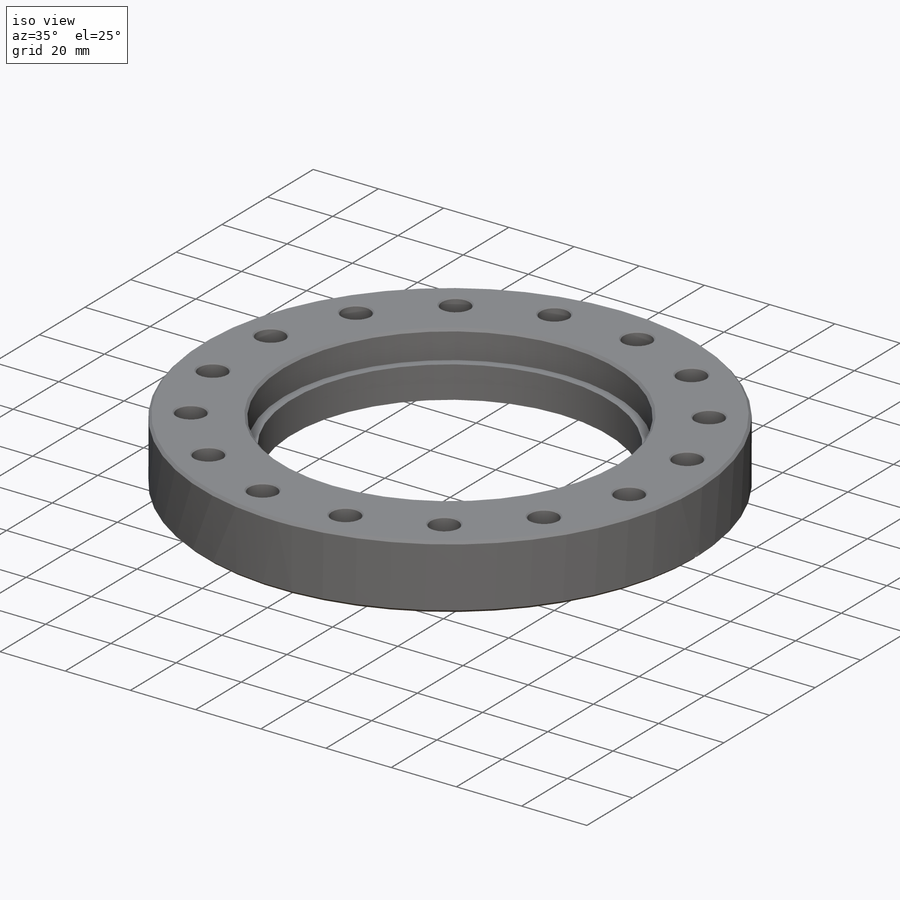
[diagram: iso view]
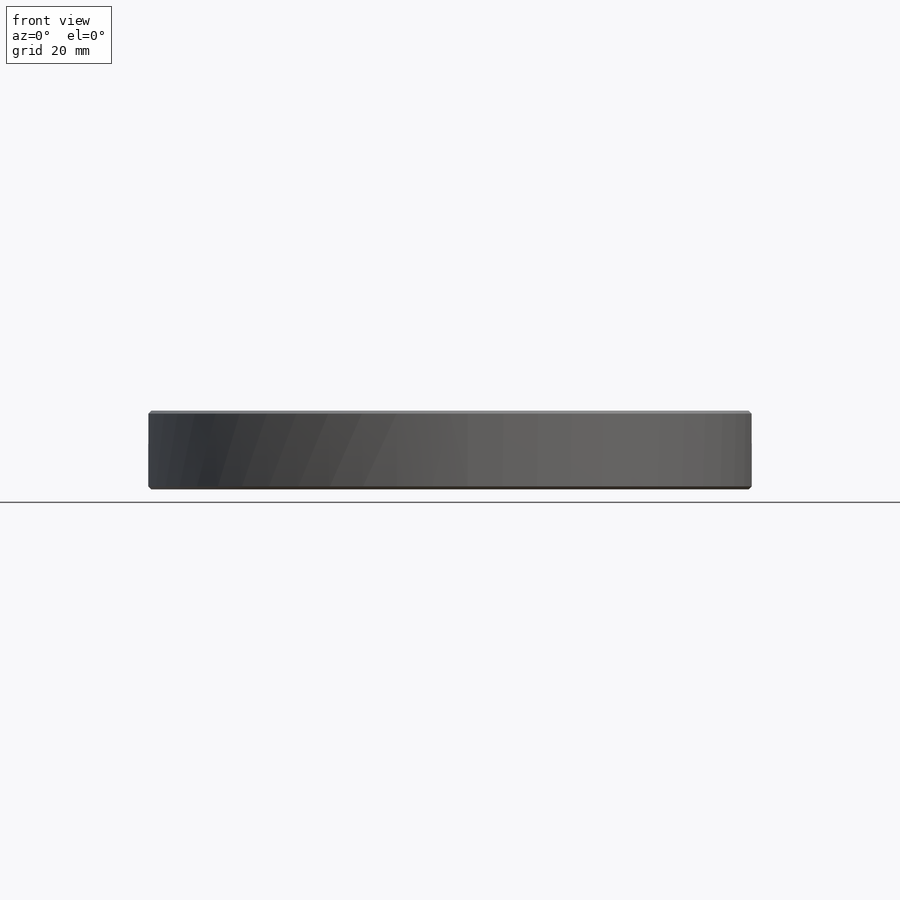
[diagram: front view]
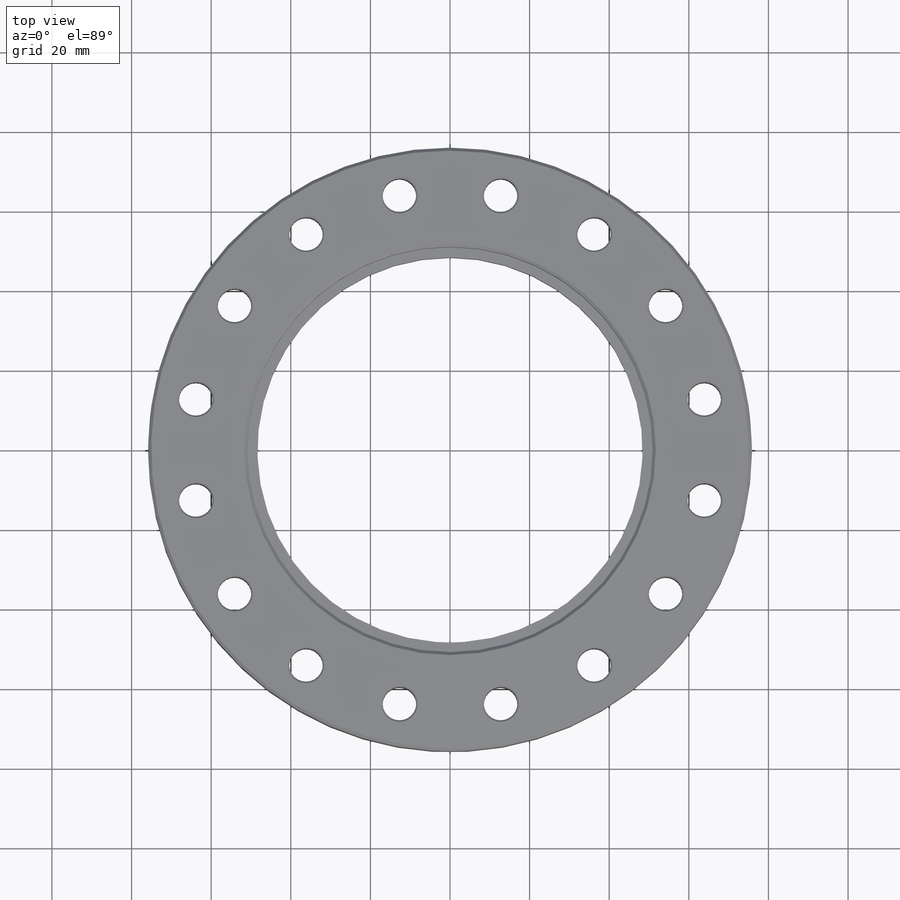
[diagram: top view]
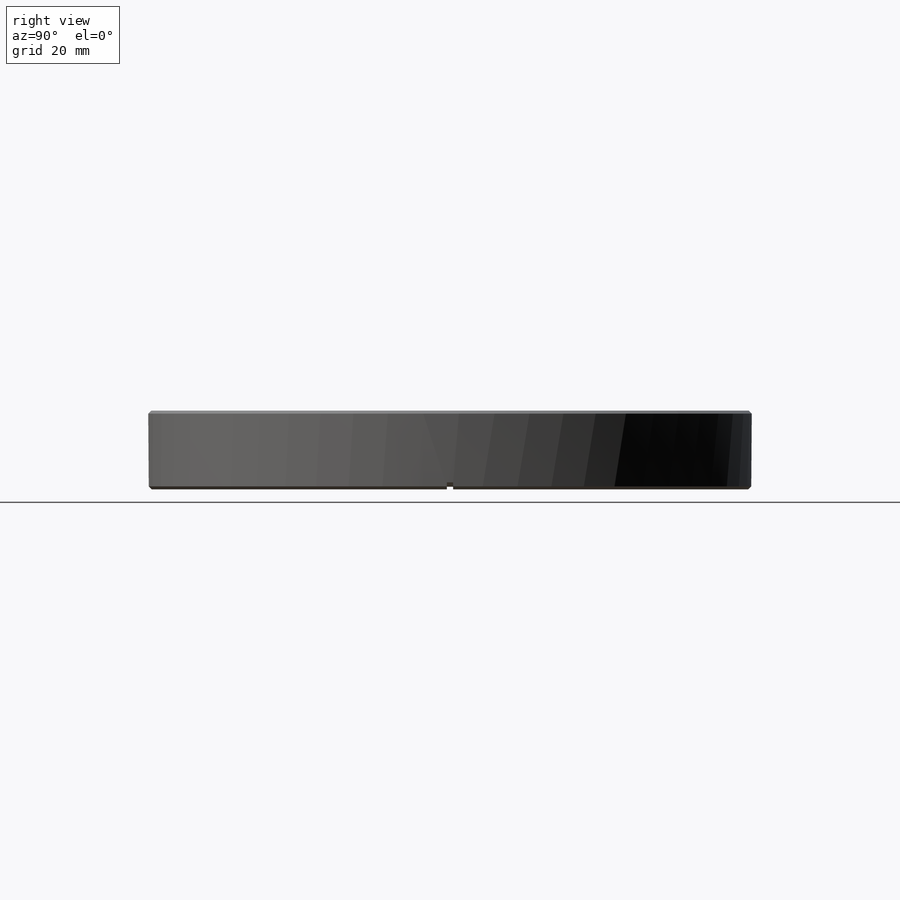
[diagram: right view]
SOLIDWORKS PART (.sldprt)
format: sldprt  version: not decoded by parser v0  size: 278,528 bytes
history: native  units: mm
features: sketch x5, cut_extrude x3, chamfer x2, material x1, extrude x1, cut_revolve x1, pattern_circular x1 (+13 scaffold rows collapsed)
feature tree (27):
  scaffold x13  (default folders/planes/origin — collapsed)
  material  "Material <not specified>"
  sketch  "Sketch1"  dims[D1=151.638mm D2=96.774mm]
  extrude  "Boss-Extrude1"  Depth=19.812mm
  sketch  "Sketch2"  dims[D1=101.854mm]
  cut_extrude  "Cut-Extrude1"  Depth=8.7122mm
  chamfer  "Chamfer1"  Distance=0.762mm Angle=45deg
  sketch  "Sketch3"  dims[c1.D1=60.325mm c1.D2=20.955mm c1.D3=1.6256mm c1.D4=0.6096mm c1.D5=1.27mm c1.D6=48.387mm c2.D2=57.658mm c2.D1=9.271mm c3.D2=11.938mm c3.D1=60.325mm c4.D2=57.658mm]
  cut_revolve  "Cut-Revolve1"  Angle=360deg
  sketch  "Sketch4"  dims[c1.D1=8.4328mm c1.D2=65.1256mm c1.D3=65.1256mm c2.D3=11.25deg]
  cut_extrude  "Cut-Extrude2"  [1 undecoded]
  chamfer  "Chamfer2"  Distance=0.381mm Angle=45deg
  pattern_circular  "CirPattern1"  Count=16 Angle=22.5deg
  sketch  "Sketch5"  dims[c1.D1=~0.299517mm c1.D2=~34.745172mm c2.D2=3.0deg c2.D3=~34.849161mm c3.D3=3.0deg c3.D4=24.1554mm c3.D5=24.1554mm c3.D1=24.1554mm c4.D4=~2.195076mm c4.D6=~2.195076mm c4.D7=34.671mm c4.D8=34.671mm c4.D1=~2.195076mm c4.D3=~59.391634mm c5.D3=~179.017436deg c6.D3=~59.391634mm c7.D3=3.0deg]
  cut_extrude  "Cut-Extrude3"  Depth=1.5875mm
decode coverage: 12 of 13 modeling features carry decoded parameters
note: ~ marks probable driven/reference dimensions
note: 1 parameter value undecoded
note: suppression state not decoded; provenance and decode notes live in map.json
